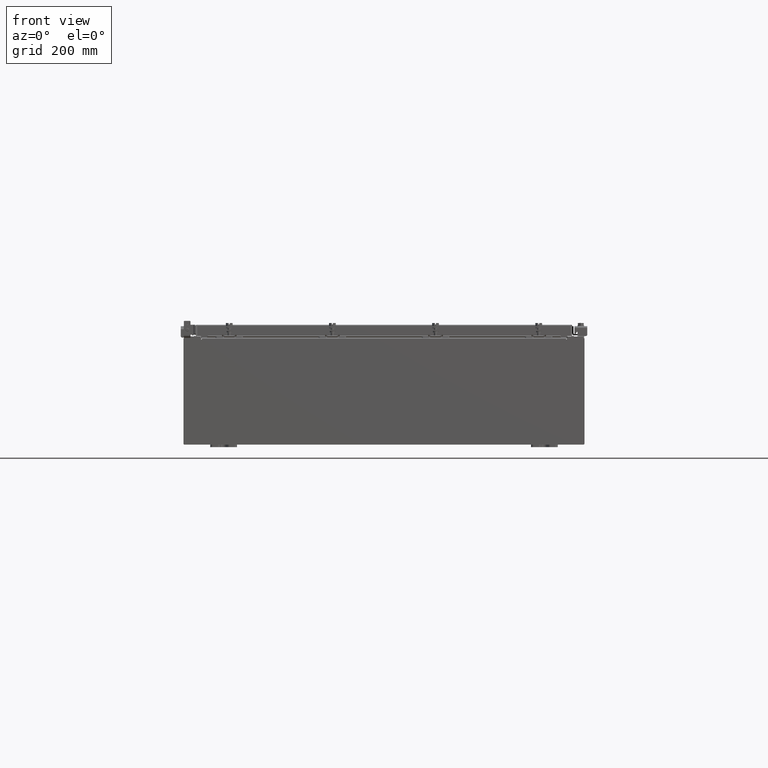
[diagram: clean part render]
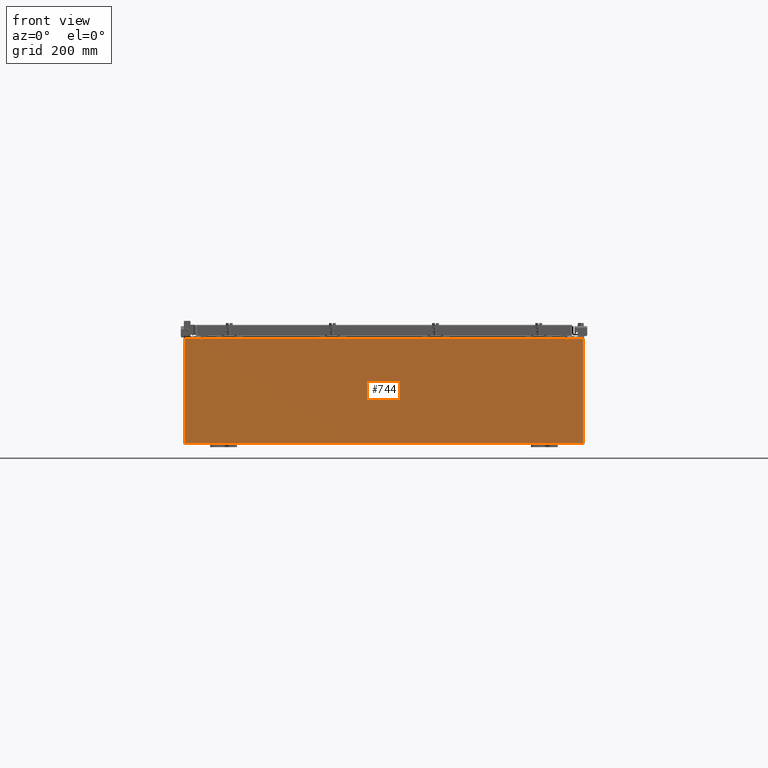
[diagram: same view with one face highlighted and labeled with its STEP entity id]
A machine part, front view. The second image highlights one B-rep face of the part: STEP entity #744.
In plain terms, the highlighted planar face has unit normal (0, 1, -0).
Its self-contained STEP definition (entity closure, byte-faithful):
#210 = FACE_OUTER_BOUND ( 'NONE', #7341, .T. ) ;
#317 = LINE ( 'NONE', #10105, #24366 ) ;
#336 = DIRECTION ( 'NONE',  ( 1.000000000000000000, 5.376446204297056400E-017, 1.665334536937734800E-016 ) ) ;
#364 = LINE ( 'NONE', #8332, #5404 ) ;
#442 = VERTEX_POINT ( 'NONE', #10216 ) ;
#661 = ORIENTED_EDGE ( 'NONE', *, *, #12056, .F. ) ;
#669 = DIRECTION ( 'NONE',  ( -4.357226125769382300E-014, 3.355183535620637000E-017, -1.000000000000000000 ) ) ;
#744 = ADVANCED_FACE ( 'NONE', ( #210 ), #11023, .F. ) ;
#1059 = EDGE_CURVE ( 'NONE', #13301, #17269, #13845, .T. ) ;
#1320 = ORIENTED_EDGE ( 'NONE', *, *, #18553, .F. ) ;
#1499 = ORIENTED_EDGE ( 'NONE', *, *, #20406, .T. ) ;
#1967 = AXIS2_PLACEMENT_3D ( 'NONE', #20543, #7296, #20631 ) ;
#2231 = CARTESIAN_POINT ( 'NONE',  ( -14.92529999999999800, 0.0000000000000000000, -3.925300000000002700 ) ) ;
#2524 = CARTESIAN_POINT ( 'NONE',  ( -13.63719999999999600, 0.0000000000000000000, 3.912299999999998800 ) ) ;
#3106 = AXIS2_PLACEMENT_3D ( 'NONE', #7009, #20352, #8919 ) ;
#3236 = ORIENTED_EDGE ( 'NONE', *, *, #1059, .F. ) ;
#3505 = VECTOR ( 'NONE', #22754, 39.37007874015748100 ) ;
#4540 = CARTESIAN_POINT ( 'NONE',  ( -14.92529999999999800, 0.0000000000000000000, 3.925299999999997800 ) ) ;
#4759 = DIRECTION ( 'NONE',  ( 5.376446204297056400E-017, 1.000000000000000000, -3.355183535620870000E-017 ) ) ;
#4784 = LINE ( 'NONE', #20943, #14889 ) ;
#4920 = ORIENTED_EDGE ( 'NONE', *, *, #10342, .T. ) ;
#5029 = EDGE_CURVE ( 'NONE', #18762, #20078, #13675, .T. ) ;
#5198 = CARTESIAN_POINT ( 'NONE',  ( -13.67454999999999500, 0.0000000000000000000, 3.874949999999997500 ) ) ;
#5404 = VECTOR ( 'NONE', #21650, 39.37007874015748100 ) ;
#5626 = CARTESIAN_POINT ( 'NONE',  ( -14.92529999999999800, 0.0000000000000000000, -3.925300000000002700 ) ) ;
#5823 = ORIENTED_EDGE ( 'NONE', *, *, #5029, .T. ) ;
#6070 = LINE ( 'NONE', #13591, #20683 ) ;
#6224 = VERTEX_POINT ( 'NONE', #10829 ) ;
#6402 = VECTOR ( 'NONE', #336, 39.37007874015748100 ) ;
#6776 = EDGE_CURVE ( 'NONE', #8995, #13301, #16995, .T. ) ;
#7009 = CARTESIAN_POINT ( 'NONE',  ( -13.65587499999999600, 0.0000000000000000000, 3.874949999999997500 ) ) ;
#7296 = DIRECTION ( 'NONE',  ( -5.376446204297057600E-017, -1.000000000000000000, -3.355183535620869400E-017 ) ) ;
#7341 = EDGE_LOOP ( 'NONE', ( #661, #15112, #1320, #20626, #3236, #19273, #9906, #9539, #1499, #4920, #23179, #5823 ) ) ;
#7465 = CARTESIAN_POINT ( 'NONE',  ( 14.92530000000000200, 0.0000000000000000000, -3.925299999999996900 ) ) ;
#7864 = CARTESIAN_POINT ( 'NONE',  ( -13.63719999999999800, 0.0000000000000000000, 3.912299999999998800 ) ) ;
#7993 = CARTESIAN_POINT ( 'NONE',  ( -14.92529999999999800, 0.0000000000000000000, 3.925299999999997800 ) ) ;
#8270 = CARTESIAN_POINT ( 'NONE',  ( -13.67454999999999500, 0.0000000000000000000, 3.925299999999998700 ) ) ;
#8332 = CARTESIAN_POINT ( 'NONE',  ( -14.92529999999999800, 0.0000000000000000000, 3.925299999999997800 ) ) ;
#8441 = CARTESIAN_POINT ( 'NONE',  ( -14.92529999999999800, 0.0000000000000000000, 3.925299999999997800 ) ) ;
#8919 = DIRECTION ( 'NONE',  ( 0.0000000000000000000, 3.355183535620870000E-017, -1.000000000000000000 ) ) ;
#8995 = VERTEX_POINT ( 'NONE', #22888 ) ;
#9275 = CARTESIAN_POINT ( 'NONE',  ( 14.92530000000000200, 0.0000000000000000000, 3.925300000000003100 ) ) ;
#9539 = ORIENTED_EDGE ( 'NONE', *, *, #22899, .T. ) ;
#9906 = ORIENTED_EDGE ( 'NONE', *, *, #24005, .F. ) ;
#10036 = VECTOR ( 'NONE', #11172, 39.37007874015748100 ) ;
#10105 = CARTESIAN_POINT ( 'NONE',  ( 13.67454999999983300, 0.0000000000000000000, -5.911719058289465700E-013 ) ) ;
#10216 = CARTESIAN_POINT ( 'NONE',  ( -13.63719999999999600, 0.0000000000000000000, 3.874949999999997500 ) ) ;
#10342 = EDGE_CURVE ( 'NONE', #11903, #10464, #13585, .T. ) ;
#10464 = VERTEX_POINT ( 'NONE', #2231 ) ;
#10829 = CARTESIAN_POINT ( 'NONE',  ( 14.92530000000000200, 0.0000000000000000000, 3.925300000000003100 ) ) ;
#11023 = PLANE ( 'NONE',  #1967 ) ;
#11172 = DIRECTION ( 'NONE',  ( -1.665334536937734800E-016, 3.355183535620870000E-017, -1.000000000000000000 ) ) ;
#11306 = LINE ( 'NONE', #7993, #15768 ) ;
#11903 = VERTEX_POINT ( 'NONE', #7465 ) ;
#11925 = DIRECTION ( 'NONE',  ( 1.665334536937734800E-016, -3.355183535620870000E-017, 1.000000000000000000 ) ) ;
#12056 = EDGE_CURVE ( 'NONE', #21083, #20078, #6070, .T. ) ;
#13240 = VECTOR ( 'NONE', #11925, 39.37007874015748100 ) ;
#13301 = VERTEX_POINT ( 'NONE', #20808 ) ;
#13585 = LINE ( 'NONE', #5626, #3505 ) ;
#13591 = CARTESIAN_POINT ( 'NONE',  ( -13.67454999999999500, 0.0000000000000000000, -2.185478394931410600E-015 ) ) ;
#13675 = LINE ( 'NONE', #8441, #18160 ) ;
#13845 = LINE ( 'NONE', #17615, #13240 ) ;
#14370 = CARTESIAN_POINT ( 'NONE',  ( 13.67455000000000400, 0.0000000000000000000, 3.925300000000003100 ) ) ;
#14882 = EDGE_CURVE ( 'NONE', #21464, #17269, #21609, .T. ) ;
#14889 = VECTOR ( 'NONE', #17180, 39.37007874015748100 ) ;
#15097 = LINE ( 'NONE', #9275, #10036 ) ;
#15112 = ORIENTED_EDGE ( 'NONE', *, *, #15268, .F. ) ;
#15268 = EDGE_CURVE ( 'NONE', #442, #21083, #23345, .T. ) ;
#15768 = VECTOR ( 'NONE', #23299, 39.37007874015748100 ) ;
#16146 = CARTESIAN_POINT ( 'NONE',  ( 13.65587500000000200, 0.0000000000000000000, 3.874950000000001900 ) ) ;
#16476 = VERTEX_POINT ( 'NONE', #14370 ) ;
#16995 = CIRCLE ( 'NONE', #22258, 0.01867499999999949400 ) ;
#17180 = DIRECTION ( 'NONE',  ( -1.665334536937734800E-016, 3.355183535620870000E-017, -1.000000000000000000 ) ) ;
#17269 = VERTEX_POINT ( 'NONE', #22242 ) ;
#17368 = DIRECTION ( 'NONE',  ( 1.665334536937734800E-016, -3.355183535620870000E-017, 1.000000000000000000 ) ) ;
#17615 = CARTESIAN_POINT ( 'NONE',  ( 13.63720000000000400, 0.0000000000000000000, 2.185478394931410600E-015 ) ) ;
#18066 = DIRECTION ( 'NONE',  ( 0.0000000000000000000, 3.355183535620870000E-017, -1.000000000000000000 ) ) ;
#18160 = VECTOR ( 'NONE', #21846, 39.37007874015748100 ) ;
#18553 = EDGE_CURVE ( 'NONE', #21464, #442, #4784, .T. ) ;
#18683 = EDGE_CURVE ( 'NONE', #10464, #18762, #11306, .T. ) ;
#18762 = VERTEX_POINT ( 'NONE', #4540 ) ;
#19273 = ORIENTED_EDGE ( 'NONE', *, *, #6776, .F. ) ;
#20078 = VERTEX_POINT ( 'NONE', #8270 ) ;
#20352 = DIRECTION ( 'NONE',  ( 5.376446204297056400E-017, 1.000000000000000000, -3.355183535620870000E-017 ) ) ;
#20406 = EDGE_CURVE ( 'NONE', #6224, #11903, #15097, .T. ) ;
#20543 = CARTESIAN_POINT ( 'NONE',  ( 0.0000000000000000000, 0.0000000000000000000, 0.0000000000000000000 ) ) ;
#20626 = ORIENTED_EDGE ( 'NONE', *, *, #14882, .T. ) ;
#20631 = DIRECTION ( 'NONE',  ( -1.665334536937734800E-016, 3.355183535620870000E-017, -1.000000000000000000 ) ) ;
#20683 = VECTOR ( 'NONE', #17368, 39.37007874015748100 ) ;
#20808 = CARTESIAN_POINT ( 'NONE',  ( 13.63720000000000400, 0.0000000000000000000, 3.874950000000001900 ) ) ;
#20943 = CARTESIAN_POINT ( 'NONE',  ( -13.63719999999999600, 0.0000000000000000000, -2.185478394931410600E-015 ) ) ;
#21083 = VERTEX_POINT ( 'NONE', #5198 ) ;
#21464 = VERTEX_POINT ( 'NONE', #2524 ) ;
#21609 = LINE ( 'NONE', #7864, #6402 ) ;
#21650 = DIRECTION ( 'NONE',  ( 1.000000000000000000, 5.376446204297056400E-017, 1.665334536937734800E-016 ) ) ;
#21846 = DIRECTION ( 'NONE',  ( 1.000000000000000000, 5.376446204297056400E-017, 1.665334536937734800E-016 ) ) ;
#22242 = CARTESIAN_POINT ( 'NONE',  ( 13.63720000000000400, 0.0000000000000000000, 3.912300000000002800 ) ) ;
#22258 = AXIS2_PLACEMENT_3D ( 'NONE', #16146, #4759, #18066 ) ;
#22754 = DIRECTION ( 'NONE',  ( -1.000000000000000000, -5.376446204297056400E-017, -1.665334536937734800E-016 ) ) ;
#22888 = CARTESIAN_POINT ( 'NONE',  ( 13.67455000000000200, 0.0000000000000000000, 3.874950000000001900 ) ) ;
#22899 = EDGE_CURVE ( 'NONE', #16476, #6224, #364, .T. ) ;
#23179 = ORIENTED_EDGE ( 'NONE', *, *, #18683, .T. ) ;
#23299 = DIRECTION ( 'NONE',  ( 1.665334536937734800E-016, -3.355183535620870000E-017, 1.000000000000000000 ) ) ;
#23345 = CIRCLE ( 'NONE', #3106, 0.01867499999999949400 ) ;
#24005 = EDGE_CURVE ( 'NONE', #16476, #8995, #317, .T. ) ;
#24366 = VECTOR ( 'NONE', #669, 39.37007874015748100 ) ;